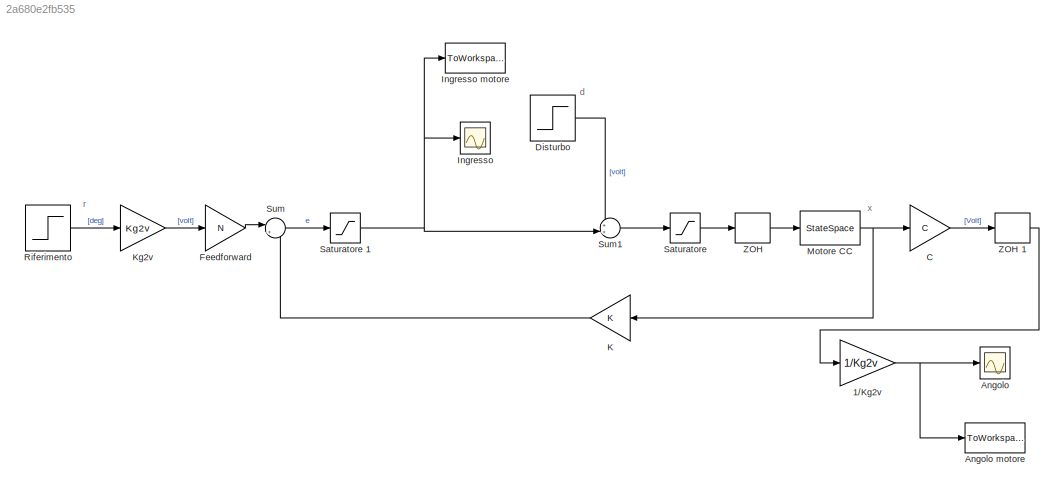
MODEL slx_2a680e2fb535
KIND model
BLOCK [Gain] 1//Kg2v 
  Gain = 1/Kg2v
  OutDataTypeStr = Inherit: Inherit via internal rule
  ParamDataTypeStr = Inherit: Inherit via internal rule
  SaturateOnIntegerOverflow = off
BLOCK [Scope] Angolo
  DataFormat = StructureWithTime
  Floating = off
  LimitDataPoints = off
  NumInputPorts = 1
  Ports = [1]
  SampleTime = 0
  SaveName = ScopeData1
  ShowLegends = off
BLOCK [ToWorkspace] Angolo motore
  FixptAsFi = on
  MaxDataPoints = inf
  Ports = [1]
  SampleTime = -1
  VariableName = angolo_motore
BLOCK [Gain] C
  Gain = C
  Multiplication = Matrix(K*u)
  OutDataTypeStr = Inherit: Inherit via internal rule
  ParamDataTypeStr = Inherit: Inherit via internal rule
  SaturateOnIntegerOverflow = off
BLOCK [Step] Disturbo
  After = d
  SampleTime = 0
BLOCK [Gain] Feedforward
  Gain = N
  OutDataTypeStr = Inherit: Inherit via internal rule
  ParamDataTypeStr = Inherit: Inherit via internal rule
  SaturateOnIntegerOverflow = off
BLOCK [Scope] Ingresso
  DataFormat = StructureWithTime
  Floating = off
  NumInputPorts = 1
  Ports = [1]
  SampleTime = 0
  ShowLegends = off
BLOCK [ToWorkspace] Ingresso motore
  FixptAsFi = on
  MaxDataPoints = inf
  Ports = [1]
  SampleTime = -1
  VariableName = ingresso_motore
BLOCK [Gain] K
  Gain = K
  Multiplication = Matrix(K*u)
  OutDataTypeStr = Inherit: Inherit via internal rule
  ParamDataTypeStr = Inherit: Inherit via internal rule
  SaturateOnIntegerOverflow = off
BLOCK [Gain] Kg2v
  Gain = Kg2v
  OutDataTypeStr = Inherit: Inherit via internal rule
  ParamDataTypeStr = Inherit: Inherit via internal rule
  SaturateOnIntegerOverflow = off
BLOCK [StateSpace] Motore CC
  A = A
  B = B
  C = eye(2)
  D = [0; 0]
  Ports = [1, 1]
  X0 = 0
BLOCK [Step] Riferimento
  After = r
  SampleTime = 0
BLOCK [Saturate] Saturatore 
  InputPortMap = u0
  LowerLimit = -5
  Ports = [1, 1]
  UpperLimit = 5
BLOCK [Saturate] Saturatore 1
  InputPortMap = u0
  LowerLimit = -5
  Ports = [1, 1]
  UpperLimit = 5
BLOCK [Sum] Sum
  IconShape = round
  InputSameDT = off
  Inputs = |+-
  OutDataTypeStr = Inherit: Inherit via internal rule
  Ports = [2, 1]
  SaturateOnIntegerOverflow = off
BLOCK [Sum] Sum1
  IconShape = round
  InputSameDT = off
  Inputs = ++|
  OutDataTypeStr = Inherit: Inherit via internal rule
  Ports = [2, 1]
  SaturateOnIntegerOverflow = off
BLOCK [ZeroOrderHold] ZOH
  SampleTime = 0.001
BLOCK [ZeroOrderHold] ZOH 1 
  SampleTime = 0.001
ANNOTATION (root): d
ANNOTATION (root): r
ANNOTATION (root): x
NET 1//Kg2v :1 -> Angolo motore:1, Angolo:1
LINE C:1 -> ZOH 1 :1
LINE Disturbo:1 -> Sum1:1
LINE Feedforward:1 -> Sum:1
LINE K:1 -> Sum:2
LINE Kg2v:1 -> Feedforward:1
NET Motore CC:1 -> C:1, K:1
LINE Riferimento:1 -> Kg2v:1
NET Saturatore 1:1 -> Ingresso motore:1, Ingresso:1, Sum1:2
LINE Saturatore :1 -> ZOH:1
LINE Sum1:1 -> Saturatore :1
LINE Sum:1 -> Saturatore 1:1
LINE ZOH 1 :1 -> 1//Kg2v :1
LINE ZOH:1 -> Motore CC:1
note: NET lines group one-source signal fan-out (src -> all destinations, sorted); 1:1 wires keep LINE
